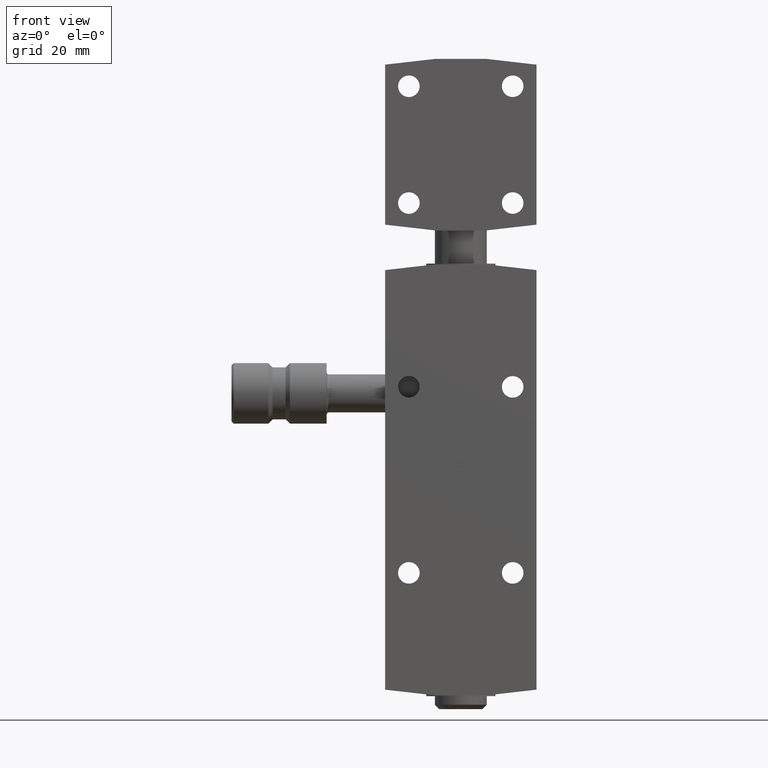
[diagram: clean part render]
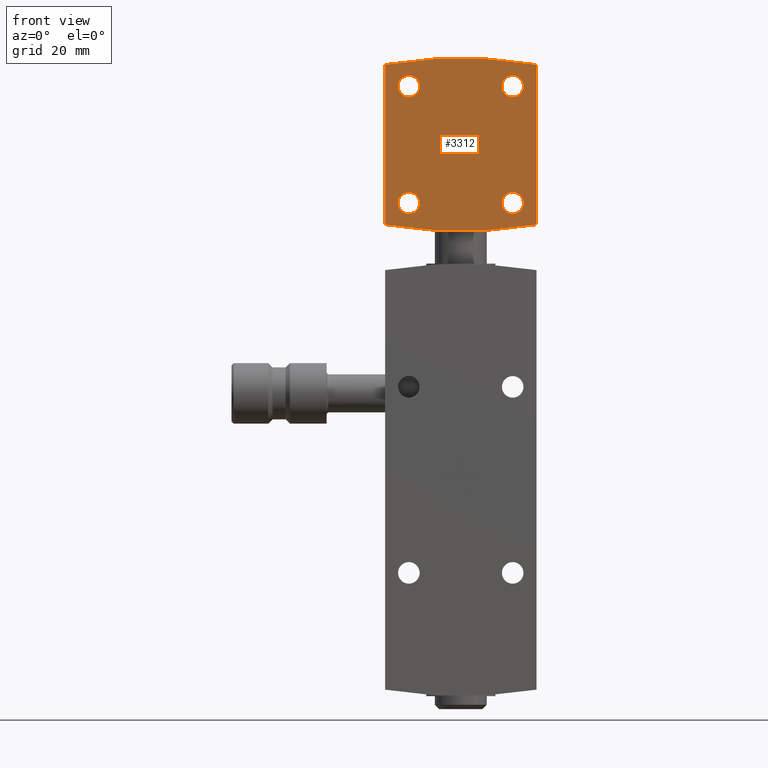
[diagram: same view with one face highlighted and labeled with its STEP entity id]
A machine part, front view. The second image highlights one B-rep face of the part: STEP entity #3312.
In plain terms, the highlighted planar face has unit normal (0, 1, 0).
Its self-contained STEP definition (entity closure, byte-faithful):
#78 = DIRECTION ( 'NONE',  ( 0.000000000000000000, -0.000000000000000000, 1.000000000000000000 ) ) ;
#487 = VERTEX_POINT ( 'NONE', #4273 ) ;
#578 = AXIS2_PLACEMENT_3D ( 'NONE', #8493, #2876, #9798 ) ;
#683 = EDGE_LOOP ( 'NONE', ( #12012 ) ) ;
#695 = LINE ( 'NONE', #938, #12325 ) ;
#790 = EDGE_CURVE ( 'NONE', #487, #8875, #695, .T. ) ;
#828 = FACE_BOUND ( 'NONE', #11151, .T. ) ;
#938 = CARTESIAN_POINT ( 'NONE',  ( -17.50000000000000711, 0.000000000000000000, 18.49999999999999645 ) ) ;
#1005 = EDGE_CURVE ( 'NONE', #12535, #12535, #8440, .T. ) ;
#1013 = DIRECTION ( 'NONE',  ( 0.000000000000000000, 1.000000000000000000, -0.000000000000000000 ) ) ;
#1028 = CARTESIAN_POINT ( 'NONE',  ( 17.50000000000000000, 0.000000000000000000, 18.50000000000000000 ) ) ;
#1241 = AXIS2_PLACEMENT_3D ( 'NONE', #11296, #3629, #3536 ) ;
#1484 = DIRECTION ( 'NONE',  ( 0.000000000000000000, 1.000000000000000000, 0.000000000000000000 ) ) ;
#1731 = EDGE_CURVE ( 'NONE', #7111, #4662, #4184, .T. ) ;
#1771 = VERTEX_POINT ( 'NONE', #11620 ) ;
#1886 = FACE_BOUND ( 'NONE', #2268, .T. ) ;
#2198 = CARTESIAN_POINT ( 'NONE',  ( 12.00000000000000355, 0.000000000000000000, 13.50000000000000000 ) ) ;
#2268 = EDGE_LOOP ( 'NONE', ( #13822 ) ) ;
#2315 = DIRECTION ( 'NONE',  ( 0.000000000000000000, 1.000000000000000000, 0.000000000000000000 ) ) ;
#2316 = EDGE_CURVE ( 'NONE', #1771, #1771, #14437, .T. ) ;
#2465 = PLANE ( 'NONE',  #3797 ) ;
#2723 = CIRCLE ( 'NONE', #14299, 102.8333333333327602 ) ;
#2876 = DIRECTION ( 'NONE',  ( 0.000000000000000000, 1.000000000000000000, 0.000000000000000000 ) ) ;
#2882 = CARTESIAN_POINT ( 'NONE',  ( -12.00000000000000178, 0.000000000000000000, -13.50000000000000000 ) ) ;
#2964 = VECTOR ( 'NONE', #7962, 1000.000000000000000 ) ;
#3006 = DIRECTION ( 'NONE',  ( 0.000000000000000000, 0.000000000000000000, 1.000000000000000000 ) ) ;
#3312 = ADVANCED_FACE ( 'NONE', ( #7347, #1886, #4519, #828, #4336 ), #2465, .F. ) ;
#3536 = DIRECTION ( 'NONE',  ( 0.000000000000000000, 0.000000000000000000, 1.000000000000000000 ) ) ;
#3629 = DIRECTION ( 'NONE',  ( 0.000000000000000000, 1.000000000000000000, 0.000000000000000000 ) ) ;
#3721 = VERTEX_POINT ( 'NONE', #4996 ) ;
#3797 = AXIS2_PLACEMENT_3D ( 'NONE', #8031, #2315, #78 ) ;
#4184 = LINE ( 'NONE', #6933, #2964 ) ;
#4273 = CARTESIAN_POINT ( 'NONE',  ( -17.50000000000000711, 0.000000000000000000, -18.49999999999999645 ) ) ;
#4336 = FACE_OUTER_BOUND ( 'NONE', #11231, .T. ) ;
#4486 = DIRECTION ( 'NONE',  ( 0.000000000000000000, 0.000000000000000000, 1.000000000000000000 ) ) ;
#4519 = FACE_BOUND ( 'NONE', #8906, .T. ) ;
#4597 = EDGE_CURVE ( 'NONE', #4662, #487, #2723, .T. ) ;
#4662 = VERTEX_POINT ( 'NONE', #5500 ) ;
#4996 = CARTESIAN_POINT ( 'NONE',  ( 11.99999999999999822, 0.000000000000000000, -11.00000000000000355 ) ) ;
#5204 = ORIENTED_EDGE ( 'NONE', *, *, #4597, .F. ) ;
#5401 = ORIENTED_EDGE ( 'NONE', *, *, #7602, .F. ) ;
#5500 = CARTESIAN_POINT ( 'NONE',  ( 17.50000000000002487, 0.000000000000000000, -18.49999999999998934 ) ) ;
#5747 = CARTESIAN_POINT ( 'NONE',  ( 12.00000000000000355, 0.000000000000000000, 16.00000000000000000 ) ) ;
#6018 = CIRCLE ( 'NONE', #13430, 2.500000000000000444 ) ;
#6028 = EDGE_CURVE ( 'NONE', #14136, #14136, #6018, .T. ) ;
#6517 = DIRECTION ( 'NONE',  ( 0.000000000000000000, 1.000000000000000000, 0.000000000000000000 ) ) ;
#6933 = CARTESIAN_POINT ( 'NONE',  ( 17.50000000000000000, 0.000000000000000000, -18.50000000000000355 ) ) ;
#7111 = VERTEX_POINT ( 'NONE', #1028 ) ;
#7347 = FACE_BOUND ( 'NONE', #683, .T. ) ;
#7602 = EDGE_CURVE ( 'NONE', #8875, #7111, #8365, .T. ) ;
#7957 = CARTESIAN_POINT ( 'NONE',  ( -11.99999999999999822, 0.000000000000000000, 13.50000000000000355 ) ) ;
#7962 = DIRECTION ( 'NONE',  ( -0.000000000000000000, -0.000000000000000000, -1.000000000000000000 ) ) ;
#8031 = CARTESIAN_POINT ( 'NONE',  ( 6.676099026006383243E-24, 0.000000000000000000, -82.83333333333276016 ) ) ;
#8321 = CARTESIAN_POINT ( 'NONE',  ( -11.99999999999999822, 0.000000000000000000, 16.00000000000000355 ) ) ;
#8365 = CIRCLE ( 'NONE', #1241, 102.8333333333327602 ) ;
#8440 = CIRCLE ( 'NONE', #9907, 2.500000000000000444 ) ;
#8493 = CARTESIAN_POINT ( 'NONE',  ( 11.99999999999999822, 0.000000000000000000, -13.50000000000000355 ) ) ;
#8678 = CIRCLE ( 'NONE', #578, 2.500000000000000444 ) ;
#8875 = VERTEX_POINT ( 'NONE', #11028 ) ;
#8906 = EDGE_LOOP ( 'NONE', ( #14430 ) ) ;
#9798 = DIRECTION ( 'NONE',  ( 0.000000000000000000, 0.000000000000000000, 1.000000000000000000 ) ) ;
#9907 = AXIS2_PLACEMENT_3D ( 'NONE', #2198, #13947, #3006 ) ;
#10176 = DIRECTION ( 'NONE',  ( 0.000000000000000000, 0.000000000000000000, -1.000000000000000000 ) ) ;
#11028 = CARTESIAN_POINT ( 'NONE',  ( -17.50000000000000711, 0.000000000000000000, 18.49999999999999645 ) ) ;
#11151 = EDGE_LOOP ( 'NONE', ( #13956 ) ) ;
#11171 = DIRECTION ( 'NONE',  ( -0.000000000000000000, -0.000000000000000000, 1.000000000000000000 ) ) ;
#11231 = EDGE_LOOP ( 'NONE', ( #5401, #13034, #5204, #12845 ) ) ;
#11296 = CARTESIAN_POINT ( 'NONE',  ( 6.676099026006383243E-24, 0.000000000000000000, -82.83333333333276016 ) ) ;
#11620 = CARTESIAN_POINT ( 'NONE',  ( -12.00000000000000178, 0.000000000000000000, -11.00000000000000000 ) ) ;
#11697 = EDGE_CURVE ( 'NONE', #3721, #3721, #8678, .T. ) ;
#12012 = ORIENTED_EDGE ( 'NONE', *, *, #2316, .T. ) ;
#12097 = DIRECTION ( 'NONE',  ( 0.000000000000000000, 0.000000000000000000, 1.000000000000000000 ) ) ;
#12325 = VECTOR ( 'NONE', #11171, 1000.000000000000000 ) ;
#12535 = VERTEX_POINT ( 'NONE', #5747 ) ;
#12845 = ORIENTED_EDGE ( 'NONE', *, *, #1731, .F. ) ;
#13034 = ORIENTED_EDGE ( 'NONE', *, *, #790, .F. ) ;
#13430 = AXIS2_PLACEMENT_3D ( 'NONE', #7957, #1484, #4486 ) ;
#13438 = CARTESIAN_POINT ( 'NONE',  ( 6.676099026006312713E-24, 0.000000000000000000, 82.83333333333276016 ) ) ;
#13822 = ORIENTED_EDGE ( 'NONE', *, *, #11697, .T. ) ;
#13947 = DIRECTION ( 'NONE',  ( 0.000000000000000000, 1.000000000000000000, 0.000000000000000000 ) ) ;
#13956 = ORIENTED_EDGE ( 'NONE', *, *, #6028, .T. ) ;
#14136 = VERTEX_POINT ( 'NONE', #8321 ) ;
#14299 = AXIS2_PLACEMENT_3D ( 'NONE', #13438, #1013, #10176 ) ;
#14430 = ORIENTED_EDGE ( 'NONE', *, *, #1005, .T. ) ;
#14437 = CIRCLE ( 'NONE', #14667, 2.500000000000000444 ) ;
#14667 = AXIS2_PLACEMENT_3D ( 'NONE', #2882, #6517, #12097 ) ;